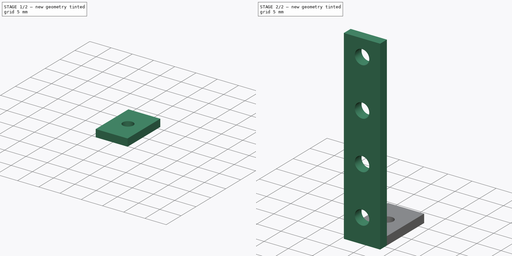
[diagram: build sequence overview — one tinted view per stage of 2, left to right]
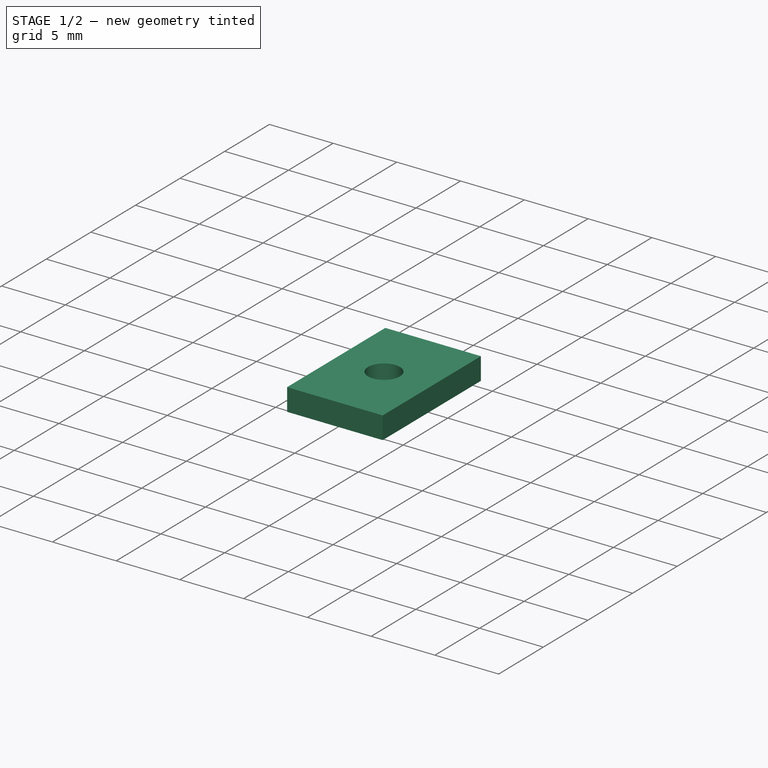
[diagram: stage 1 of 2 — iso view after this stage's code; geometry added in this stage tinted green]
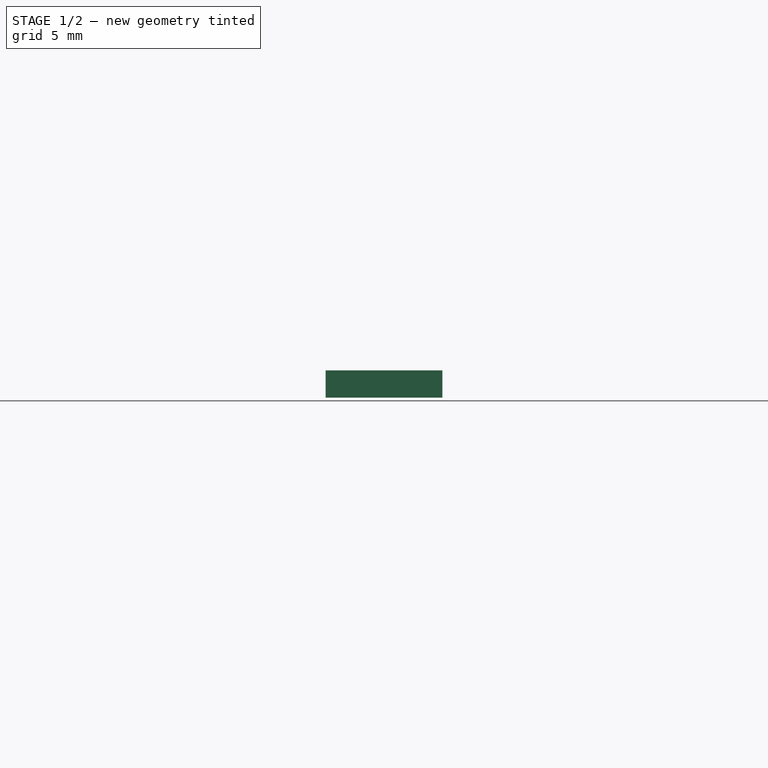
[diagram: stage 1 of 2 — front view after this stage's code; geometry added in this stage tinted green]
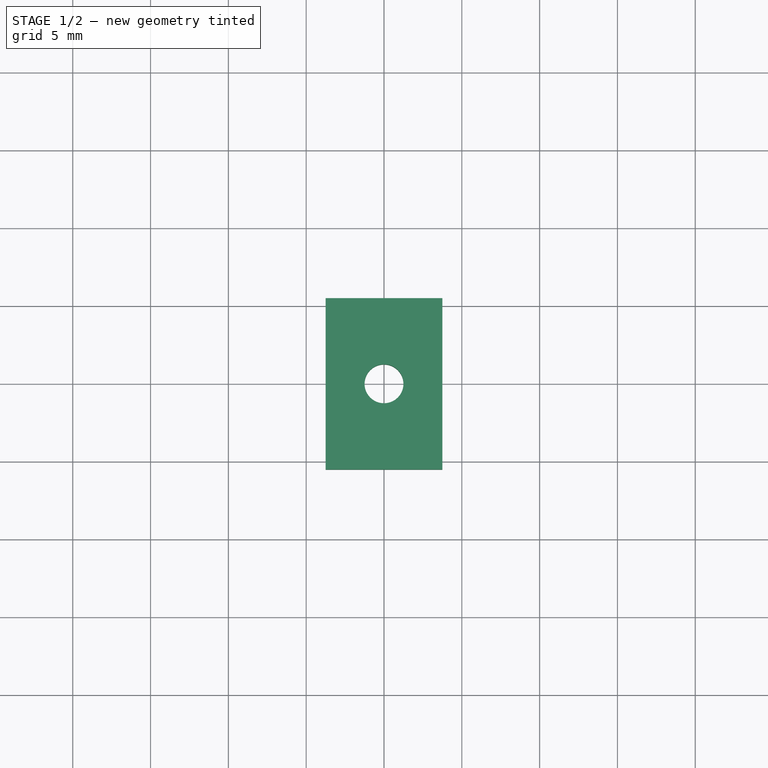
[diagram: stage 1 of 2 — top view after this stage's code; geometry added in this stage tinted green]
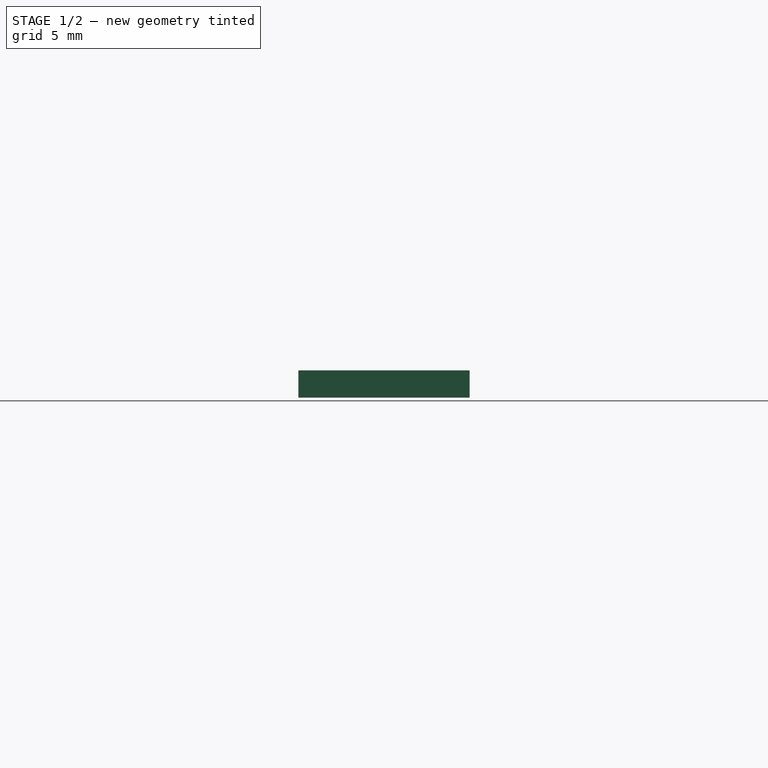
[diagram: stage 1 of 2 — right view after this stage's code; geometry added in this stage tinted green]
FCSTD DOCUMENT  (FreeCAD 0.19R14555 (Git shallow))
Label: 1U_v0_SSD_SideMount_Rail
License: All rights reserved
LicenseURL: http://en.wikipedia.org/wiki/All_rights_reserved
objects: Sketcher::SketchObject×2, PartDesign::Pad×2, PartDesign::Body×1
note: 7 computed .brp shape members not serialized (recipe doc carries the construction recipe); baked Part::Feature solids carry a one-line shape summary decoded from their .brp

FEATURE [Sketcher::SketchObject] Sketch
  FullyConstrained = true
  MapMode = 5
  Support = -> [XY_Plane]
  expr: Constraints[12] = 7.5 + 3.5
  sketch-geometry (5):
    g0: Circle CenterX=0 CenterY=0 CenterZ=0 NormalX=0 NormalY=0 NormalZ=1 AngleXU=0 Radius=1.25
    g1: LineSegment StartX=-3.75 StartY=5.5 StartZ=0 EndX=3.75 EndY=5.5 EndZ=0
    g2: LineSegment StartX=3.75 StartY=5.5 StartZ=0 EndX=3.75 EndY=-5.5 EndZ=0
    g3: LineSegment StartX=3.75 StartY=-5.5 StartZ=0 EndX=-3.75 EndY=-5.5 EndZ=0
    g4: LineSegment StartX=-3.75 StartY=-5.5 StartZ=0 EndX=-3.75 EndY=5.5 EndZ=0
  constraints (13):
    c: Coincident(g0,g-1)
    c: Diameter(g0) = 2.5
    c: Coincident(g1,g2)
    c: Coincident(g2,g3)
    c: Coincident(g3,g4)
    c: Coincident(g4,g1)
    c: Horizontal(g1)
    c: Horizontal(g3)
    c: Vertical(g2)
    c: Vertical(g4)
    c: Symmetric(g1,g2,g0)
    c: DistanceX(g1,g1) = 7.5
    c: DistanceY(g2,g2) = 11
FEATURE [PartDesign::Pad] Pad
  Direction = (1,1,1)
  Length = 1.75
  Length2 = 100
  Profile = -> Sketch
  Type = 0
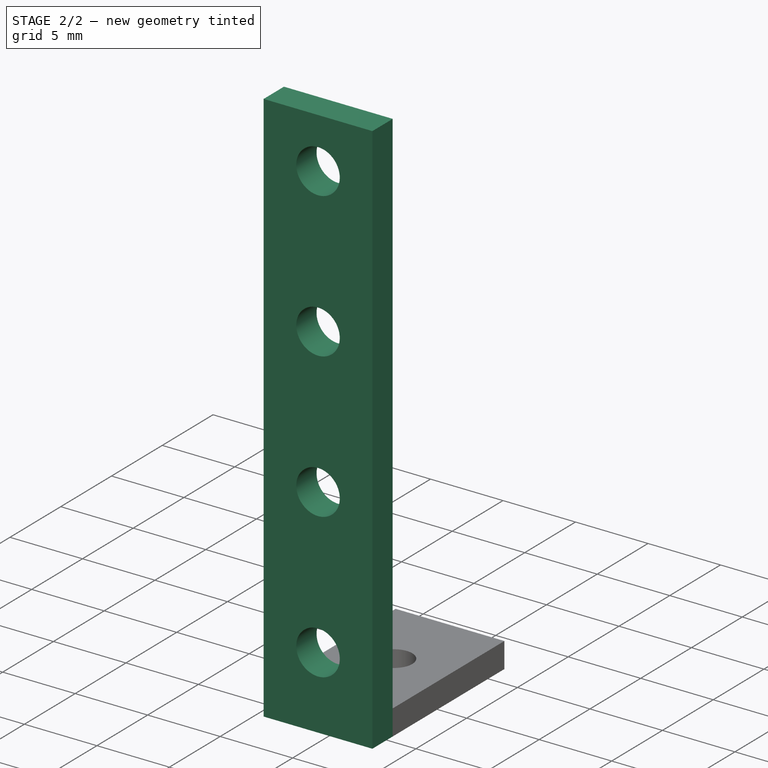
[diagram: stage 2 of 2 — iso view after this stage's code; geometry added in this stage tinted green]
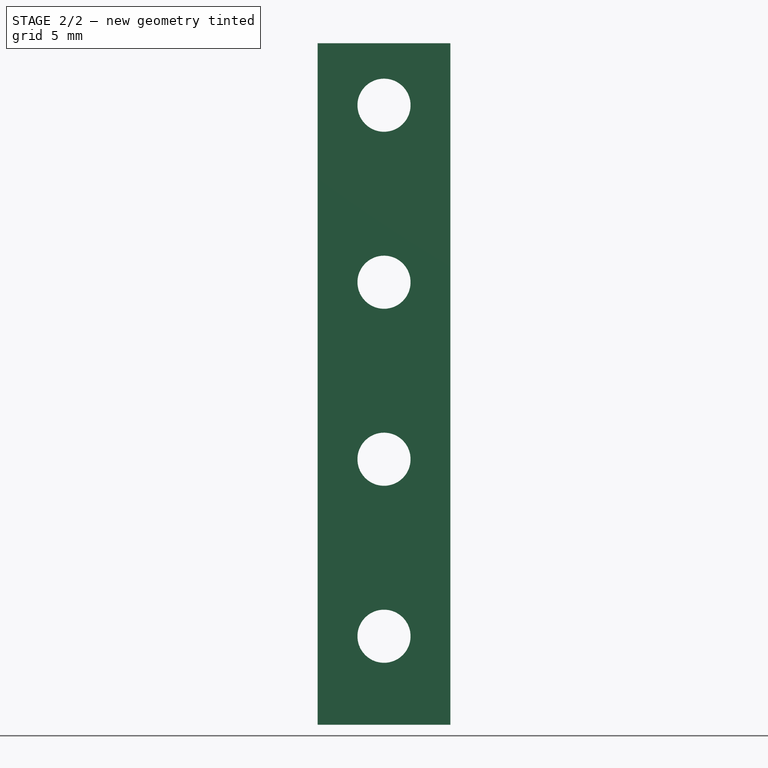
[diagram: stage 2 of 2 — front view after this stage's code; geometry added in this stage tinted green]
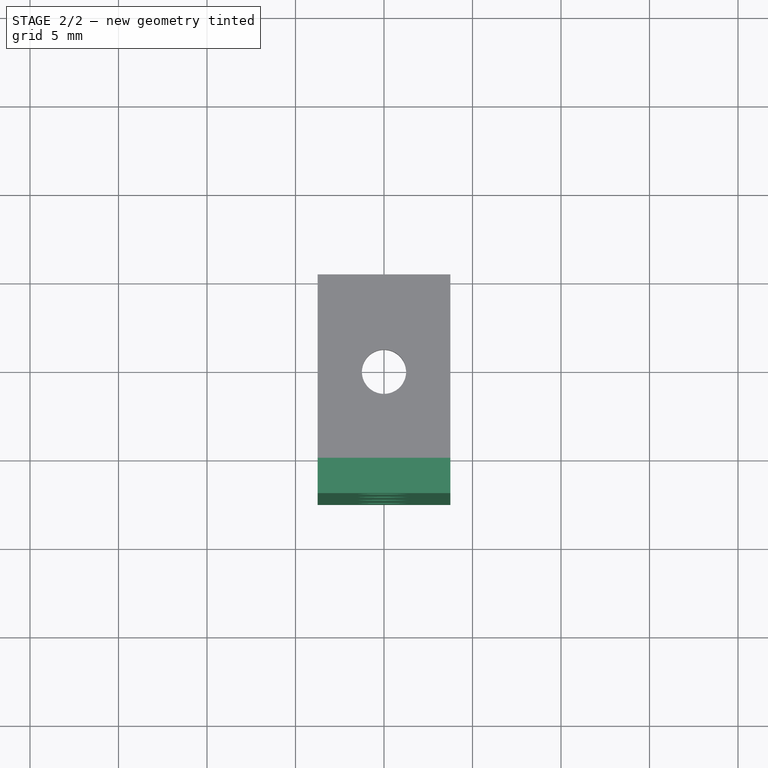
[diagram: stage 2 of 2 — top view after this stage's code; geometry added in this stage tinted green]
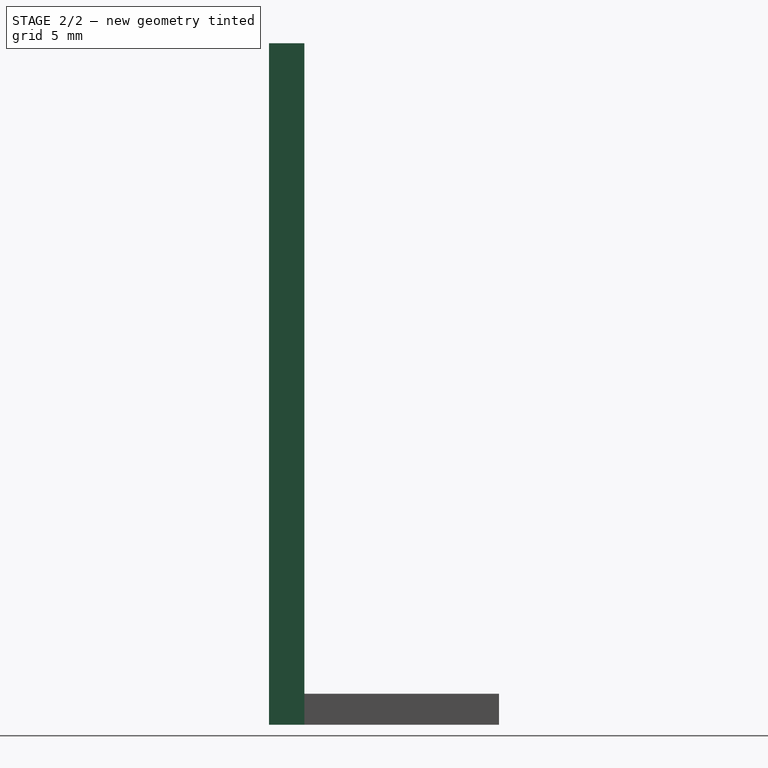
[diagram: stage 2 of 2 — right view after this stage's code; geometry added in this stage tinted green]
FEATURE [Sketcher::SketchObject] Sketch001
  FullyConstrained = true
  MapMode = 5
  Placement = pos=(0,-5.5,0) rot=(1,0,0;1.5708rad)
  Support = -> [Pad]
  sketch-geometry (8):
    g0: LineSegment StartX=-3.75 StartY=0 StartZ=0 EndX=3.75 EndY=0 EndZ=0
    g1: LineSegment StartX=3.75 StartY=0 StartZ=0 EndX=3.75 EndY=38.5 EndZ=0
    g2: LineSegment StartX=3.75 StartY=38.5 StartZ=0 EndX=-3.75 EndY=38.5 EndZ=0
    g3: LineSegment StartX=-3.75 StartY=38.5 StartZ=0 EndX=-3.75 EndY=0 EndZ=0
    g4: Circle CenterX=0 CenterY=5 CenterZ=0 NormalX=0 NormalY=0 NormalZ=1 AngleXU=0 Radius=1.5
    g5: Circle CenterX=0 CenterY=15 CenterZ=0 NormalX=0 NormalY=0 NormalZ=1 AngleXU=0 Radius=1.5
    g6: Circle CenterX=0 CenterY=25 CenterZ=0 NormalX=0 NormalY=0 NormalZ=1 AngleXU=0 Radius=1.5
    g7: Circle CenterX=0 CenterY=35 CenterZ=0 NormalX=0 NormalY=0 NormalZ=1 AngleXU=0 Radius=1.5
  constraints (23):
    c: Coincident(g0,g1)
    c: Coincident(g1,g2)
    c: Coincident(g2,g3)
    c: Coincident(g3,g0)
    c: Horizontal(g0)
    c: Horizontal(g2)
    c: Vertical(g1)
    c: Vertical(g3)
    c: DistanceX(g0,g0) = 7.5
    c: Symmetric(g0,g0,g-1)
    c: PointOnObject(g4,g-2)
    c: Diameter(g4) = 3
    c: DistanceY(g-1,g4) = 5
    c: Equal(g4,g5) = 3
    c: PointOnObject(g5,g-2)
    c: DistanceY(g4,g5) = 10
    c: Equal(g4,g6) = 3
    c: PointOnObject(g6,g-2)
    c: DistanceY(g5,g6) = 10
    c: Equal(g4,g7) = 3
    c: PointOnObject(g7,g-2)
    c: DistanceY(g6,g7) = 10
    c: DistanceY(g7,g1) = 3.5
FEATURE [PartDesign::Pad] Pad001
  BaseFeature = -> Pad
  Direction = (1,1,1)
  Length = 2
  Length2 = 100
  Profile = -> Sketch001
  Type = 0
FEATURE [PartDesign::Body] Body
  Group = -> [Sketch,Pad,Sketch001,Pad001]
  Origin = -> Origin
  Tip = -> Pad001
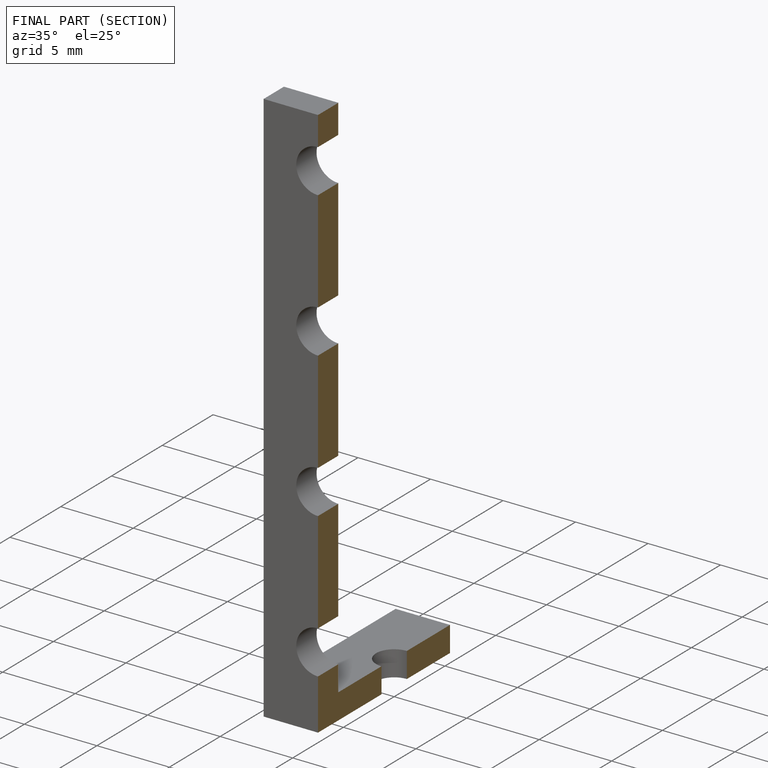
[diagram: finished part — half-section view (interior)]
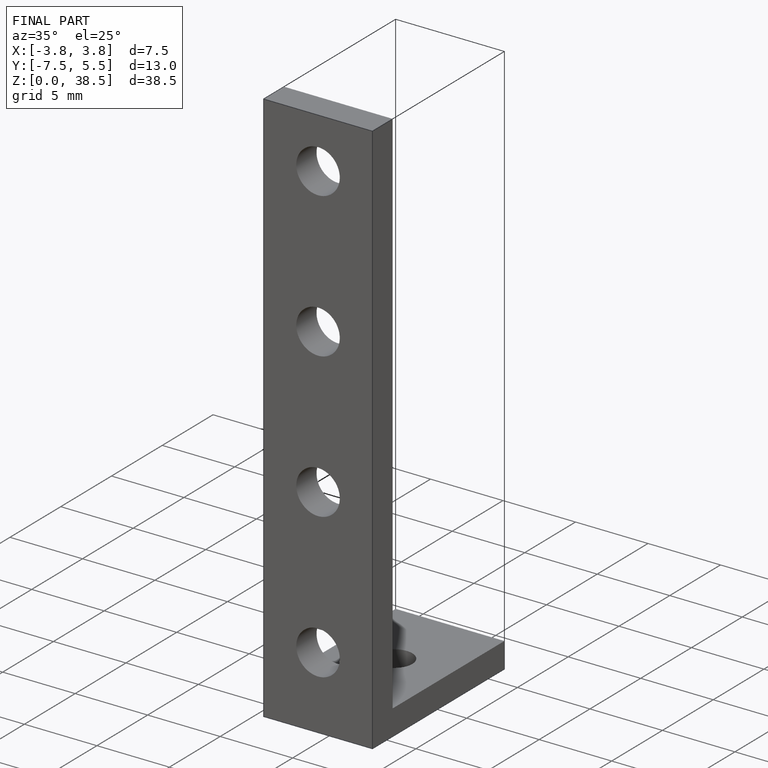
[diagram: finished part — iso view with bounding-box wireframe]
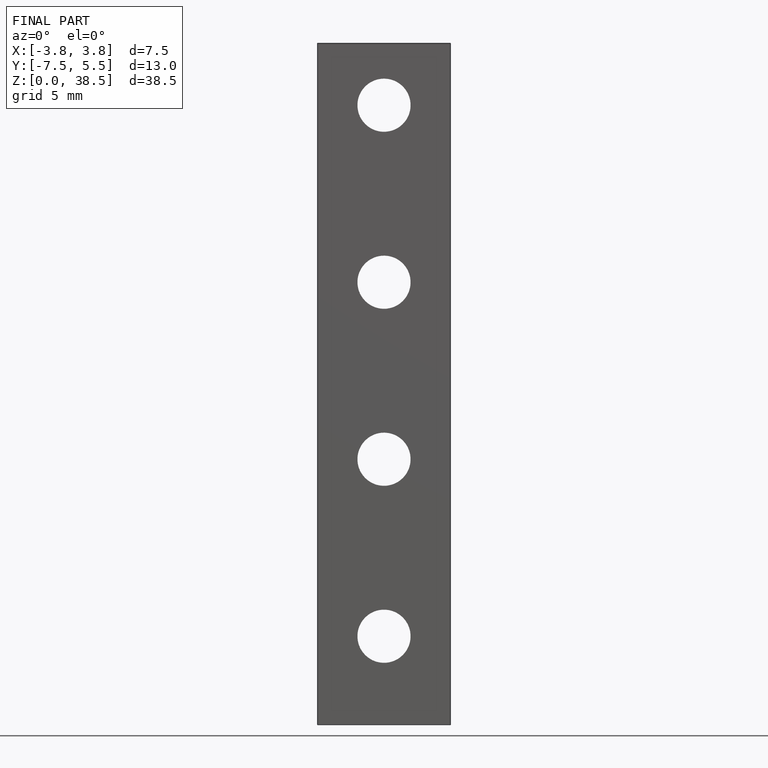
[diagram: finished part — front view with bounding-box wireframe]
